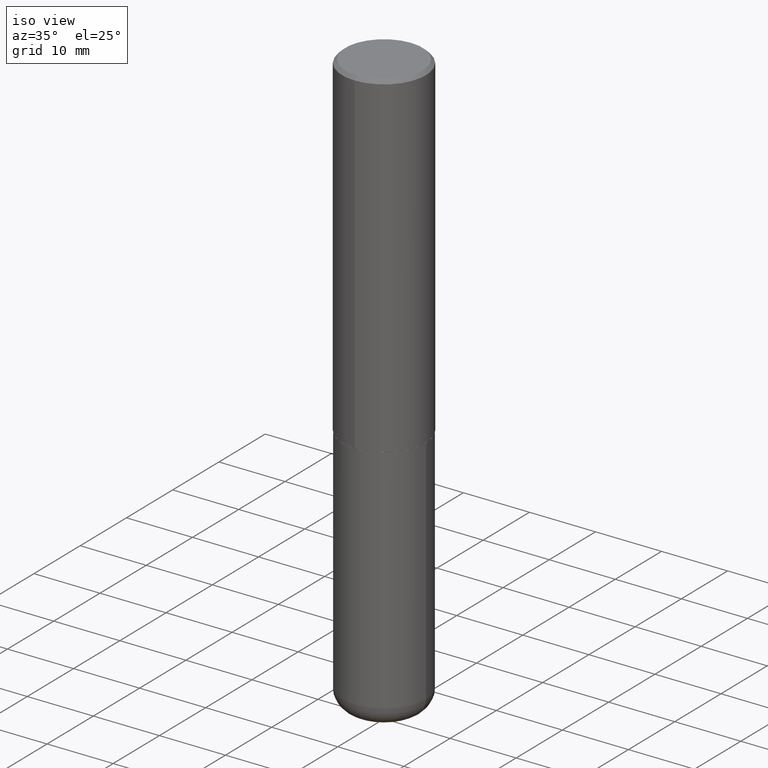
[diagram: clean part render]
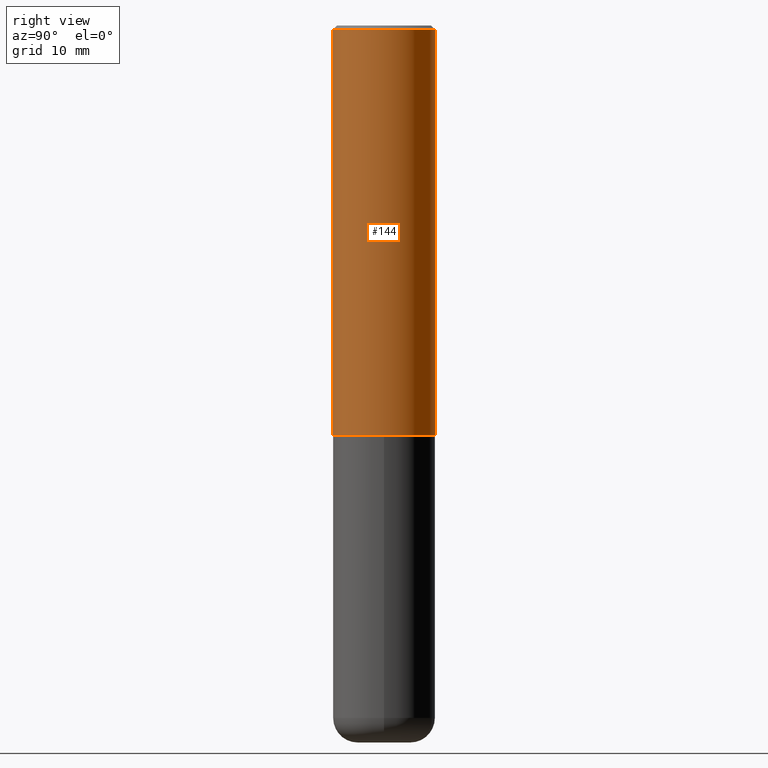
[diagram: tour spotlight — one face highlighted and labeled with its STEP entity id]
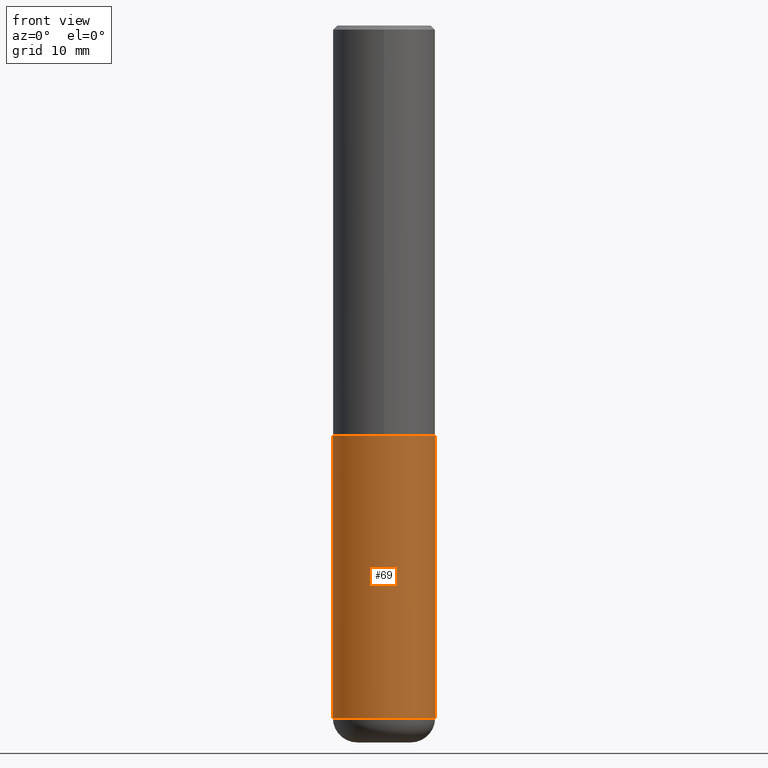
[diagram: tour spotlight — one face highlighted and labeled with its STEP entity id]
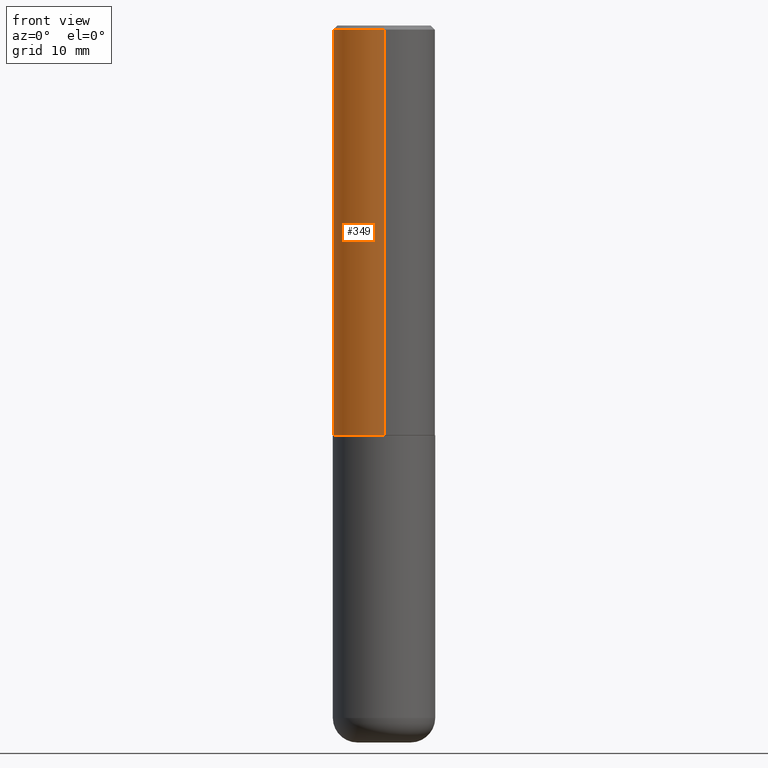
[diagram: tour spotlight — one face highlighted and labeled with its STEP entity id]
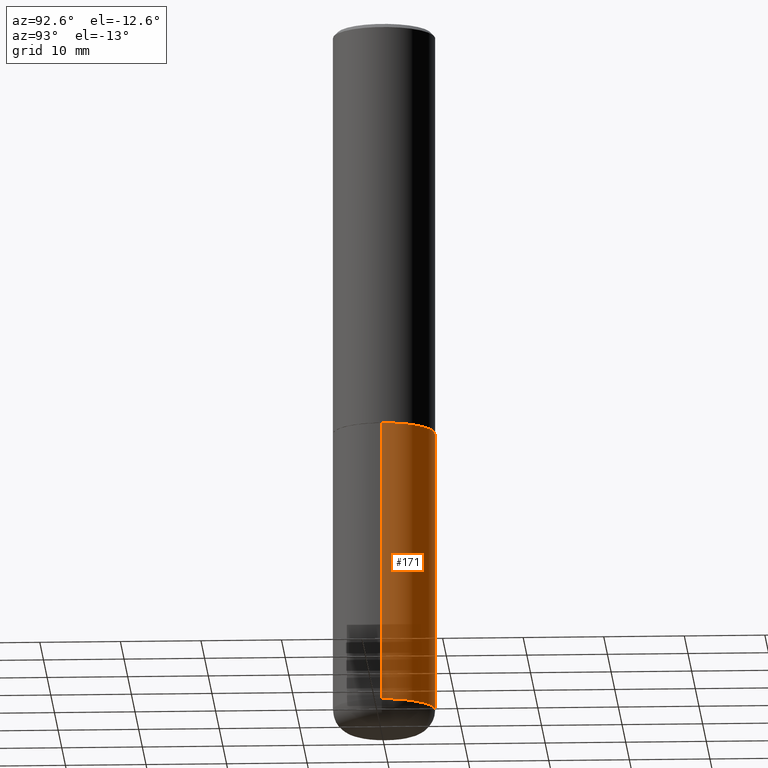
[diagram: tour spotlight — one face highlighted and labeled with its STEP entity id]
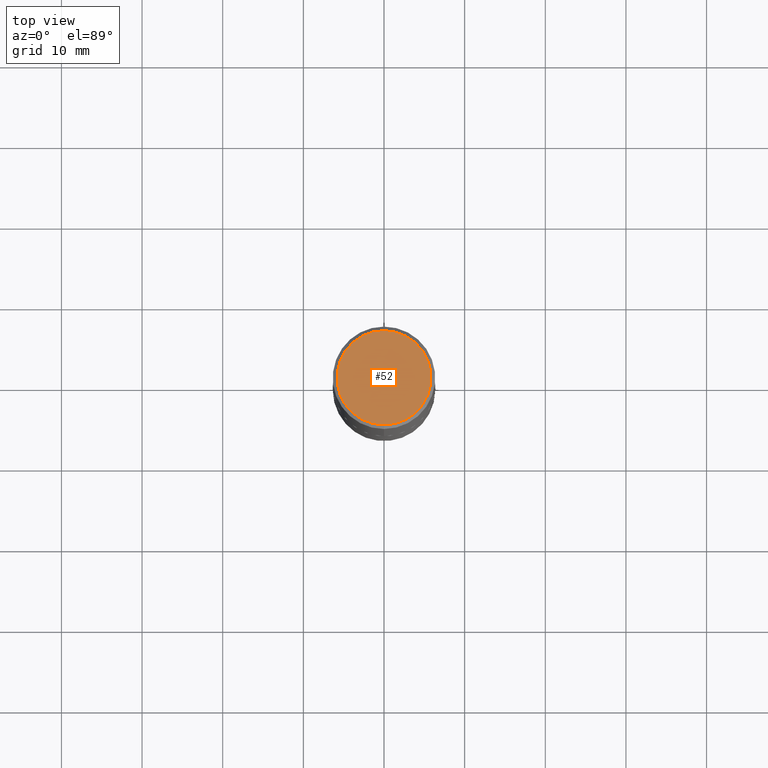
[diagram: tour spotlight — one face highlighted and labeled with its STEP entity id]
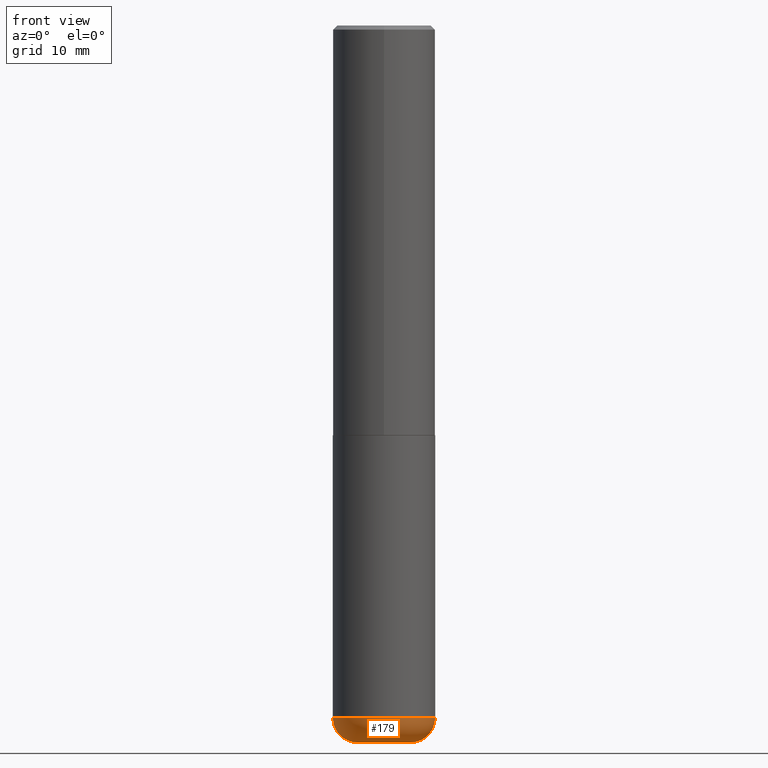
[diagram: tour spotlight — one face highlighted and labeled with its STEP entity id]
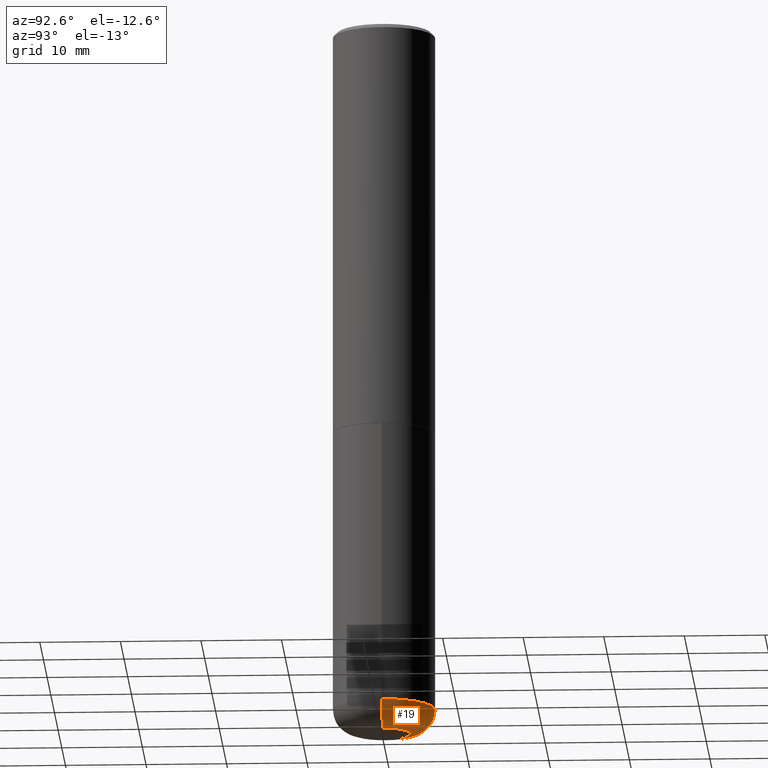
[diagram: tour spotlight — one face highlighted and labeled with its STEP entity id]
A machine part: a face-by-face anatomy tour. The part has 14 B-rep faces; the first image is the clean iso view, then the 7 largest visible faces are spotlighted one at a time (largest first), each with its STEP entity span.

Face 1 — right view, entity #144. In plain terms, the highlighted cylindrical surface (partial cylindrical patch) has radius 6.35 mm, axis along (-0, 0, 1).
Definition (entity closure, byte-faithful):
#10 = CARTESIAN_POINT ( 'NONE',  ( -1.715124499442882299E-15, -0.2500000000000000555, -0.01999999999999918510 ) ) ;
#14 = CARTESIAN_POINT ( 'NONE',  ( 1.776356839400251254E-15, 0.2500000000000001110, -8.727742518895823935E-16 ) ) ;
#28 = ORIENTED_EDGE ( 'NONE', *, *, #221, .T. ) ;
#41 = EDGE_CURVE ( 'NONE', #186, #153, #391, .T. ) ;
#43 = DIRECTION ( 'NONE',  ( -6.982962677686266711E-15, -1.000000000000000000, 3.491097007558327996E-15 ) ) ;
#67 = CARTESIAN_POINT ( 'NONE',  ( 1.776356839400276103E-15, 0.2499999999999933109, -1.999000000000000554 ) ) ;
#80 = CARTESIAN_POINT ( 'NONE',  ( 0.000000000000000000, 0.000000000000000000, 0.000000000000000000 ) ) ;
#90 = ORIENTED_EDGE ( 'NONE', *, *, #96, .F. ) ;
#96 = EDGE_CURVE ( 'NONE', #186, #159, #142, .T. ) ;
#97 = CARTESIAN_POINT ( 'NONE',  ( 4.891474366573836672E-31, -6.982194015116674235E-17, -0.02000000000000005593 ) ) ;
#121 = ORIENTED_EDGE ( 'NONE', *, *, #41, .T. ) ;
#141 = DIRECTION ( 'NONE',  ( -2.445737183286911680E-29, 3.491097007558327602E-15, 1.000000000000000000 ) ) ;
#142 = LINE ( 'NONE', #206, #404 ) ;
#144 = ADVANCED_FACE ( 'NONE', ( #295 ), #167, .T. ) ;
#148 = AXIS2_PLACEMENT_3D ( 'NONE', #80, #302, #43 ) ;
#153 = VERTEX_POINT ( 'NONE', #67 ) ;
#159 = VERTEX_POINT ( 'NONE', #10 ) ;
#167 = CYLINDRICAL_SURFACE ( 'NONE', #148, 0.2500000000000001110 ) ;
#181 = ORIENTED_EDGE ( 'NONE', *, *, #402, .F. ) ;
#186 = VERTEX_POINT ( 'NONE', #200 ) ;
#188 = DIRECTION ( 'NONE',  ( -2.445737183286911680E-29, 3.491097007558327602E-15, 1.000000000000000000 ) ) ;
#200 = CARTESIAN_POINT ( 'NONE',  ( -1.745740669421519543E-15, -0.2500000000000072164, -1.998999999999998778 ) ) ;
#206 = CARTESIAN_POINT ( 'NONE',  ( -1.745740669421567467E-15, -0.2500000000000001110, 8.727742518895823935E-16 ) ) ;
#221 = EDGE_CURVE ( 'NONE', #153, #379, #300, .T. ) ;
#223 = DIRECTION ( 'NONE',  ( -2.445737183286911680E-29, 3.491097007558327602E-15, 1.000000000000000000 ) ) ;
#226 = CARTESIAN_POINT ( 'NONE',  ( 4.889028629390535480E-29, -6.978702918109095527E-15, -1.998999999999999666 ) ) ;
#230 = CIRCLE ( 'NONE', #336, 0.2500000000000000000 ) ;
#259 = VECTOR ( 'NONE', #141, 39.37007874015748143 ) ;
#263 = DIRECTION ( 'NONE',  ( -2.445737183286911680E-29, 3.491097007558327602E-15, 1.000000000000000000 ) ) ;
#289 = EDGE_LOOP ( 'NONE', ( #121, #28, #181, #90 ) ) ;
#295 = FACE_OUTER_BOUND ( 'NONE', #289, .T. ) ;
#296 = AXIS2_PLACEMENT_3D ( 'NONE', #226, #188, #377 ) ;
#300 = LINE ( 'NONE', #14, #259 ) ;
#302 = DIRECTION ( 'NONE',  ( -2.445737183286911680E-29, 3.491097007558327602E-15, 1.000000000000000000 ) ) ;
#336 = AXIS2_PLACEMENT_3D ( 'NONE', #97, #223, #354 ) ;
#354 = DIRECTION ( 'NONE',  ( -6.982962677686265922E-15, -1.000000000000000000, 3.483106191921935554E-15 ) ) ;
#377 = DIRECTION ( 'NONE',  ( -6.982962677686265922E-15, -1.000000000000000000, 3.278217592397112312E-15 ) ) ;
#379 = VERTEX_POINT ( 'NONE', #382 ) ;
#382 = CARTESIAN_POINT ( 'NONE',  ( 1.745740669421566875E-15, 0.2499999999999999167, -0.02000000000000092676 ) ) ;
#391 = CIRCLE ( 'NONE', #296, 0.2500000000000002776 ) ;
#402 = EDGE_CURVE ( 'NONE', #159, #379, #230, .T. ) ;
#404 = VECTOR ( 'NONE', #263, 39.37007874015748143 ) ;

Face 2 — front view, entity #69. In plain terms, the highlighted cylindrical surface (partial cylindrical patch) has radius 6.35 mm, axis along (-0, 0, 1).
Definition (entity closure, byte-faithful):
#1 = ORIENTED_EDGE ( 'NONE', *, *, #376, .F. ) ;
#11 = AXIS2_PLACEMENT_3D ( 'NONE', #410, #119, #368 ) ;
#48 = CARTESIAN_POINT ( 'NONE',  ( 0.2500000000000000000, -8.728703347107857054E-15, -1.999999999999999778 ) ) ;
#56 = CIRCLE ( 'NONE', #164, 0.2500000000000000000 ) ;
#60 = LINE ( 'NONE', #95, #323 ) ;
#65 = ORIENTED_EDGE ( 'NONE', *, *, #270, .F. ) ;
#69 = ADVANCED_FACE ( 'NONE', ( #132 ), #345, .T. ) ;
#95 = CARTESIAN_POINT ( 'NONE',  ( -0.2500000000000000000, 1.776356839400250465E-15, -1.229733772563726445E-29 ) ) ;
#100 = DIRECTION ( 'NONE',  ( 1.000000000000000000, -6.982962677686266711E-15, 4.876176775795935793E-29 ) ) ;
#119 = DIRECTION ( 'NONE',  ( -2.445468806185136597E-29, 3.491481338843145583E-15, 1.000000000000000000 ) ) ;
#130 = VERTEX_POINT ( 'NONE', #48 ) ;
#132 = FACE_OUTER_BOUND ( 'NONE', #249, .T. ) ;
#136 = AXIS2_PLACEMENT_3D ( 'NONE', #253, #385, #100 ) ;
#146 = CARTESIAN_POINT ( 'NONE',  ( -0.2499999999999999722, -1.002485008588958224E-14, -3.379999999999999893 ) ) ;
#160 = DIRECTION ( 'NONE',  ( -2.445468806185136877E-29, 3.491481338843145188E-15, 1.000000000000000000 ) ) ;
#164 = AXIS2_PLACEMENT_3D ( 'NONE', #209, #180, #269 ) ;
#180 = DIRECTION ( 'NONE',  ( -2.445468806185136597E-29, 3.491481338843145583E-15, 1.000000000000000000 ) ) ;
#187 = CARTESIAN_POINT ( 'NONE',  ( 0.2500000000000000000, -1.745740669421566678E-15, 1.219044193948983948E-29 ) ) ;
#207 = VERTEX_POINT ( 'NONE', #367 ) ;
#209 = CARTESIAN_POINT ( 'NONE',  ( 8.265684564905761787E-29, -1.180120692528983271E-14, -3.379999999999999893 ) ) ;
#215 = ORIENTED_EDGE ( 'NONE', *, *, #290, .T. ) ;
#218 = ORIENTED_EDGE ( 'NONE', *, *, #370, .T. ) ;
#244 = VERTEX_POINT ( 'NONE', #146 ) ;
#249 = EDGE_LOOP ( 'NONE', ( #1, #215, #218, #65 ) ) ;
#253 = CARTESIAN_POINT ( 'NONE',  ( 0.000000000000000000, 0.000000000000000000, 0.000000000000000000 ) ) ;
#269 = DIRECTION ( 'NONE',  ( 1.000000000000000000, -6.982962677686270655E-15, 0.000000000000000000 ) ) ;
#270 = EDGE_CURVE ( 'NONE', #207, #130, #307, .T. ) ;
#290 = EDGE_CURVE ( 'NONE', #244, #418, #56, .T. ) ;
#307 = CIRCLE ( 'NONE', #11, 0.2500000000000000000 ) ;
#314 = DIRECTION ( 'NONE',  ( -2.445468806185136877E-29, 3.491481338843145188E-15, 1.000000000000000000 ) ) ;
#323 = VECTOR ( 'NONE', #314, 39.37007874015748143 ) ;
#345 = CYLINDRICAL_SURFACE ( 'NONE', #136, 0.2500000000000000000 ) ;
#351 = LINE ( 'NONE', #187, #406 ) ;
#367 = CARTESIAN_POINT ( 'NONE',  ( -0.2500000000000000000, -7.615727962087811078E-15, -1.999999999999999778 ) ) ;
#368 = DIRECTION ( 'NONE',  ( 1.000000000000000000, -6.982962677686266711E-15, 0.000000000000000000 ) ) ;
#370 = EDGE_CURVE ( 'NONE', #418, #130, #351, .T. ) ;
#376 = EDGE_CURVE ( 'NONE', #244, #207, #60, .T. ) ;
#385 = DIRECTION ( 'NONE',  ( -2.445468806185136597E-29, 3.491481338843145583E-15, 1.000000000000000000 ) ) ;
#386 = CARTESIAN_POINT ( 'NONE',  ( 0.2499999999999999722, -1.354694759471140096E-14, -3.379999999999999893 ) ) ;
#406 = VECTOR ( 'NONE', #160, 39.37007874015748143 ) ;
#410 = CARTESIAN_POINT ( 'NONE',  ( 4.890937612370272633E-29, -6.982962677686290376E-15, -1.999999999999999778 ) ) ;
#418 = VERTEX_POINT ( 'NONE', #386 ) ;

Face 3 — front view, entity #349. In plain terms, the highlighted cylindrical surface (partial cylindrical patch) has radius 6.35 mm, axis along (-0, 0, 1).
Definition (entity closure, byte-faithful):
#10 = CARTESIAN_POINT ( 'NONE',  ( -1.715124499442882299E-15, -0.2500000000000000555, -0.01999999999999918510 ) ) ;
#14 = CARTESIAN_POINT ( 'NONE',  ( 1.776356839400251254E-15, 0.2500000000000001110, -8.727742518895823935E-16 ) ) ;
#62 = CYLINDRICAL_SURFACE ( 'NONE', #298, 0.2500000000000001110 ) ;
#67 = CARTESIAN_POINT ( 'NONE',  ( 1.776356839400276103E-15, 0.2499999999999933109, -1.999000000000000554 ) ) ;
#84 = AXIS2_PLACEMENT_3D ( 'NONE', #359, #176, #236 ) ;
#96 = EDGE_CURVE ( 'NONE', #186, #159, #142, .T. ) ;
#114 = DIRECTION ( 'NONE',  ( -2.445737183286911680E-29, 3.491097007558327602E-15, 1.000000000000000000 ) ) ;
#122 = EDGE_CURVE ( 'NONE', #153, #186, #272, .T. ) ;
#127 = DIRECTION ( 'NONE',  ( -6.982962677686266711E-15, -1.000000000000000000, 3.491097007558327996E-15 ) ) ;
#128 = EDGE_CURVE ( 'NONE', #379, #159, #178, .T. ) ;
#141 = DIRECTION ( 'NONE',  ( -2.445737183286911680E-29, 3.491097007558327602E-15, 1.000000000000000000 ) ) ;
#142 = LINE ( 'NONE', #206, #404 ) ;
#147 = ORIENTED_EDGE ( 'NONE', *, *, #122, .T. ) ;
#153 = VERTEX_POINT ( 'NONE', #67 ) ;
#159 = VERTEX_POINT ( 'NONE', #10 ) ;
#170 = DIRECTION ( 'NONE',  ( -6.982962677686265922E-15, -1.000000000000000000, 3.278217592397112312E-15 ) ) ;
#176 = DIRECTION ( 'NONE',  ( -2.445737183286911680E-29, 3.491097007558327602E-15, 1.000000000000000000 ) ) ;
#178 = CIRCLE ( 'NONE', #84, 0.2500000000000000000 ) ;
#186 = VERTEX_POINT ( 'NONE', #200 ) ;
#200 = CARTESIAN_POINT ( 'NONE',  ( -1.745740669421519543E-15, -0.2500000000000072164, -1.998999999999998778 ) ) ;
#206 = CARTESIAN_POINT ( 'NONE',  ( -1.745740669421567467E-15, -0.2500000000000001110, 8.727742518895823935E-16 ) ) ;
#221 = EDGE_CURVE ( 'NONE', #153, #379, #300, .T. ) ;
#224 = FACE_OUTER_BOUND ( 'NONE', #311, .T. ) ;
#236 = DIRECTION ( 'NONE',  ( -6.982962677686265922E-15, -1.000000000000000000, 3.483106191921935554E-15 ) ) ;
#238 = AXIS2_PLACEMENT_3D ( 'NONE', #334, #114, #170 ) ;
#248 = CARTESIAN_POINT ( 'NONE',  ( 0.000000000000000000, 0.000000000000000000, 0.000000000000000000 ) ) ;
#259 = VECTOR ( 'NONE', #141, 39.37007874015748143 ) ;
#263 = DIRECTION ( 'NONE',  ( -2.445737183286911680E-29, 3.491097007558327602E-15, 1.000000000000000000 ) ) ;
#272 = CIRCLE ( 'NONE', #238, 0.2500000000000002776 ) ;
#298 = AXIS2_PLACEMENT_3D ( 'NONE', #248, #348, #127 ) ;
#300 = LINE ( 'NONE', #14, #259 ) ;
#311 = EDGE_LOOP ( 'NONE', ( #411, #147, #322, #313 ) ) ;
#313 = ORIENTED_EDGE ( 'NONE', *, *, #128, .F. ) ;
#322 = ORIENTED_EDGE ( 'NONE', *, *, #96, .T. ) ;
#334 = CARTESIAN_POINT ( 'NONE',  ( 4.889028629390535480E-29, -6.978702918109095527E-15, -1.998999999999999666 ) ) ;
#348 = DIRECTION ( 'NONE',  ( -2.445737183286911680E-29, 3.491097007558327602E-15, 1.000000000000000000 ) ) ;
#349 = ADVANCED_FACE ( 'NONE', ( #224 ), #62, .T. ) ;
#359 = CARTESIAN_POINT ( 'NONE',  ( 4.891474366573836672E-31, -6.982194015116674235E-17, -0.02000000000000005593 ) ) ;
#379 = VERTEX_POINT ( 'NONE', #382 ) ;
#382 = CARTESIAN_POINT ( 'NONE',  ( 1.745740669421566875E-15, 0.2499999999999999167, -0.02000000000000092676 ) ) ;
#404 = VECTOR ( 'NONE', #263, 39.37007874015748143 ) ;
#411 = ORIENTED_EDGE ( 'NONE', *, *, #221, .F. ) ;

Face 4 — auxiliary view, entity #171. In plain terms, the highlighted cylindrical surface (partial cylindrical patch) has radius 6.35 mm, axis along (-0, 0, 1).
Definition (entity closure, byte-faithful):
#3 = AXIS2_PLACEMENT_3D ( 'NONE', #116, #237, #155 ) ;
#4 = ORIENTED_EDGE ( 'NONE', *, *, #376, .T. ) ;
#8 = CYLINDRICAL_SURFACE ( 'NONE', #91, 0.2500000000000000000 ) ;
#45 = CIRCLE ( 'NONE', #405, 0.2500000000000000000 ) ;
#48 = CARTESIAN_POINT ( 'NONE',  ( 0.2500000000000000000, -8.728703347107857054E-15, -1.999999999999999778 ) ) ;
#54 = DIRECTION ( 'NONE',  ( -2.445468806185136597E-29, 3.491481338843145583E-15, 1.000000000000000000 ) ) ;
#59 = EDGE_LOOP ( 'NONE', ( #61, #4, #151, #123 ) ) ;
#60 = LINE ( 'NONE', #95, #323 ) ;
#61 = ORIENTED_EDGE ( 'NONE', *, *, #294, .T. ) ;
#91 = AXIS2_PLACEMENT_3D ( 'NONE', #361, #401, #197 ) ;
#95 = CARTESIAN_POINT ( 'NONE',  ( -0.2500000000000000000, 1.776356839400250465E-15, -1.229733772563726445E-29 ) ) ;
#111 = FACE_OUTER_BOUND ( 'NONE', #59, .T. ) ;
#116 = CARTESIAN_POINT ( 'NONE',  ( 8.265684564905761787E-29, -1.180120692528983271E-14, -3.379999999999999893 ) ) ;
#123 = ORIENTED_EDGE ( 'NONE', *, *, #370, .F. ) ;
#130 = VERTEX_POINT ( 'NONE', #48 ) ;
#145 = DIRECTION ( 'NONE',  ( 1.000000000000000000, -6.982962677686266711E-15, 0.000000000000000000 ) ) ;
#146 = CARTESIAN_POINT ( 'NONE',  ( -0.2499999999999999722, -1.002485008588958224E-14, -3.379999999999999893 ) ) ;
#151 = ORIENTED_EDGE ( 'NONE', *, *, #232, .F. ) ;
#155 = DIRECTION ( 'NONE',  ( 1.000000000000000000, -6.982962677686270655E-15, 0.000000000000000000 ) ) ;
#160 = DIRECTION ( 'NONE',  ( -2.445468806185136877E-29, 3.491481338843145188E-15, 1.000000000000000000 ) ) ;
#171 = ADVANCED_FACE ( 'NONE', ( #111 ), #8, .T. ) ;
#185 = CIRCLE ( 'NONE', #3, 0.2500000000000000000 ) ;
#187 = CARTESIAN_POINT ( 'NONE',  ( 0.2500000000000000000, -1.745740669421566678E-15, 1.219044193948983948E-29 ) ) ;
#197 = DIRECTION ( 'NONE',  ( 1.000000000000000000, -6.982962677686266711E-15, 4.876176775795935793E-29 ) ) ;
#207 = VERTEX_POINT ( 'NONE', #367 ) ;
#232 = EDGE_CURVE ( 'NONE', #130, #207, #45, .T. ) ;
#237 = DIRECTION ( 'NONE',  ( -2.445468806185136597E-29, 3.491481338843145583E-15, 1.000000000000000000 ) ) ;
#244 = VERTEX_POINT ( 'NONE', #146 ) ;
#294 = EDGE_CURVE ( 'NONE', #418, #244, #185, .T. ) ;
#314 = DIRECTION ( 'NONE',  ( -2.445468806185136877E-29, 3.491481338843145188E-15, 1.000000000000000000 ) ) ;
#323 = VECTOR ( 'NONE', #314, 39.37007874015748143 ) ;
#340 = CARTESIAN_POINT ( 'NONE',  ( 4.890937612370272633E-29, -6.982962677686290376E-15, -1.999999999999999778 ) ) ;
#351 = LINE ( 'NONE', #187, #406 ) ;
#361 = CARTESIAN_POINT ( 'NONE',  ( 0.000000000000000000, 0.000000000000000000, 0.000000000000000000 ) ) ;
#367 = CARTESIAN_POINT ( 'NONE',  ( -0.2500000000000000000, -7.615727962087811078E-15, -1.999999999999999778 ) ) ;
#370 = EDGE_CURVE ( 'NONE', #418, #130, #351, .T. ) ;
#376 = EDGE_CURVE ( 'NONE', #244, #207, #60, .T. ) ;
#386 = CARTESIAN_POINT ( 'NONE',  ( 0.2499999999999999722, -1.354694759471140096E-14, -3.379999999999999893 ) ) ;
#401 = DIRECTION ( 'NONE',  ( -2.445468806185136597E-29, 3.491481338843145583E-15, 1.000000000000000000 ) ) ;
#405 = AXIS2_PLACEMENT_3D ( 'NONE', #340, #54, #145 ) ;
#406 = VECTOR ( 'NONE', #160, 39.37007874015748143 ) ;
#418 = VERTEX_POINT ( 'NONE', #386 ) ;

Face 5 — top view, entity #52. In plain terms, the highlighted planar face has unit normal (0, -0, -1).
Definition (entity closure, byte-faithful):
#24 = DIRECTION ( 'NONE',  ( 6.982962677686265922E-15, 1.000000000000000000, -3.491097007558327602E-15 ) ) ;
#29 = FACE_OUTER_BOUND ( 'NONE', #73, .T. ) ;
#38 = CIRCLE ( 'NONE', #332, 0.2299999999999999822 ) ;
#52 = ADVANCED_FACE ( 'NONE', ( #29 ), #89, .F. ) ;
#55 = ORIENTED_EDGE ( 'NONE', *, *, #211, .T. ) ;
#68 = CIRCLE ( 'NONE', #415, 0.2299999999999999822 ) ;
#73 = EDGE_LOOP ( 'NONE', ( #214, #55 ) ) ;
#89 = PLANE ( 'NONE',  #344 ) ;
#156 = VERTEX_POINT ( 'NONE', #292 ) ;
#183 = CARTESIAN_POINT ( 'NONE',  ( 1.606081415867841067E-15, 0.2299999999999999822, -8.158020473064706174E-16 ) ) ;
#202 = DIRECTION ( 'NONE',  ( -2.445737183286911680E-29, 3.491097007558327602E-15, 1.000000000000000000 ) ) ;
#211 = EDGE_CURVE ( 'NONE', #156, #388, #68, .T. ) ;
#214 = ORIENTED_EDGE ( 'NONE', *, *, #381, .T. ) ;
#219 = CARTESIAN_POINT ( 'NONE',  ( 6.285415214839433991E-46, -8.971934677910720830E-32, -2.569947113611056727E-17 ) ) ;
#250 = DIRECTION ( 'NONE',  ( -6.982962677686265922E-15, -1.000000000000000000, 3.491097007558327207E-15 ) ) ;
#282 = DIRECTION ( 'NONE',  ( -2.445737183286911680E-29, 3.491097007558327602E-15, 1.000000000000000000 ) ) ;
#292 = CARTESIAN_POINT ( 'NONE',  ( -1.646519519465166968E-15, -0.2299999999999999822, 7.772528406023046093E-16 ) ) ;
#308 = DIRECTION ( 'NONE',  ( 2.445737183286911400E-29, -3.491097007558327602E-15, -1.000000000000000000 ) ) ;
#327 = CARTESIAN_POINT ( 'NONE',  ( 6.285415214839433991E-46, -8.971934677910720830E-32, -2.569947113611056727E-17 ) ) ;
#328 = DIRECTION ( 'NONE',  ( -6.982962677686265922E-15, -1.000000000000000000, 3.491097007558327207E-15 ) ) ;
#332 = AXIS2_PLACEMENT_3D ( 'NONE', #219, #282, #250 ) ;
#344 = AXIS2_PLACEMENT_3D ( 'NONE', #183, #308, #24 ) ;
#381 = EDGE_CURVE ( 'NONE', #388, #156, #38, .T. ) ;
#383 = CARTESIAN_POINT ( 'NONE',  ( 1.675911042644703774E-15, 0.2299999999999999822, -8.286517828745257562E-16 ) ) ;
#388 = VERTEX_POINT ( 'NONE', #383 ) ;
#415 = AXIS2_PLACEMENT_3D ( 'NONE', #327, #202, #328 ) ;

Face 6 — front view, entity #179. In plain terms, the highlighted toroidal blend (fillet) surface has major radius 3.302 mm and minor (blend) radius 3.048 mm.
Definition (entity closure, byte-faithful):
#13 = DIRECTION ( 'NONE',  ( 1.000000000000000000, -6.982962677686265133E-15, 4.883557194083112340E-29 ) ) ;
#15 = DIRECTION ( 'NONE',  ( 7.105427357601001859E-15, 1.000000000000000000, -3.491481338843145583E-15 ) ) ;
#25 = ORIENTED_EDGE ( 'NONE', *, *, #161, .F. ) ;
#35 = CARTESIAN_POINT ( 'NONE',  ( 0.1300000000000000044, -1.270899207338904770E-14, -3.379999999999999893 ) ) ;
#56 = CIRCLE ( 'NONE', #164, 0.2500000000000000000 ) ;
#77 = DIRECTION ( 'NONE',  ( -2.445468806185136597E-29, 3.491481338843145583E-15, 1.000000000000000000 ) ) ;
#88 = CARTESIAN_POINT ( 'NONE',  ( -0.1300000000000000044, -1.066066460767623105E-14, -3.500000000000000000 ) ) ;
#98 = AXIS2_PLACEMENT_3D ( 'NONE', #35, #279, #414 ) ;
#104 = CARTESIAN_POINT ( 'NONE',  ( 8.559140821647976968E-29, -1.222018468595100934E-14, -3.500000000000000000 ) ) ;
#118 = ORIENTED_EDGE ( 'NONE', *, *, #301, .T. ) ;
#146 = CARTESIAN_POINT ( 'NONE',  ( -0.2499999999999999722, -1.002485008588958224E-14, -3.379999999999999893 ) ) ;
#161 = EDGE_CURVE ( 'NONE', #278, #244, #384, .T. ) ;
#162 = CARTESIAN_POINT ( 'NONE',  ( 0.1300000000000000044, -1.312796983405022433E-14, -3.500000000000000000 ) ) ;
#164 = AXIS2_PLACEMENT_3D ( 'NONE', #209, #180, #269 ) ;
#172 = CARTESIAN_POINT ( 'NONE',  ( -0.1300000000000000044, -1.087750136880170322E-14, -3.379999999999999893 ) ) ;
#179 = ADVANCED_FACE ( 'NONE', ( #325 ), #265, .T. ) ;
#180 = DIRECTION ( 'NONE',  ( -2.445468806185136597E-29, 3.491481338843145583E-15, 1.000000000000000000 ) ) ;
#192 = EDGE_CURVE ( 'NONE', #278, #305, #303, .T. ) ;
#209 = CARTESIAN_POINT ( 'NONE',  ( 8.265684564905761787E-29, -1.180120692528983271E-14, -3.379999999999999893 ) ) ;
#229 = DIRECTION ( 'NONE',  ( 1.000000000000000000, -6.982962677686273810E-15, 0.000000000000000000 ) ) ;
#234 = CARTESIAN_POINT ( 'NONE',  ( 8.265684564905761787E-29, -1.180120692528983271E-14, -3.379999999999999893 ) ) ;
#241 = ORIENTED_EDGE ( 'NONE', *, *, #192, .T. ) ;
#244 = VERTEX_POINT ( 'NONE', #146 ) ;
#246 = AXIS2_PLACEMENT_3D ( 'NONE', #104, #364, #229 ) ;
#251 = AXIS2_PLACEMENT_3D ( 'NONE', #172, #15, #297 ) ;
#265 = TOROIDAL_SURFACE ( 'NONE', #280, 0.1300000000000000044, 0.1199999999999999123 ) ;
#269 = DIRECTION ( 'NONE',  ( 1.000000000000000000, -6.982962677686270655E-15, 0.000000000000000000 ) ) ;
#276 = EDGE_LOOP ( 'NONE', ( #25, #241, #118, #319 ) ) ;
#278 = VERTEX_POINT ( 'NONE', #88 ) ;
#279 = DIRECTION ( 'NONE',  ( -6.982962677686266711E-15, -1.000000000000000000, 3.491481338843145583E-15 ) ) ;
#280 = AXIS2_PLACEMENT_3D ( 'NONE', #234, #77, #13 ) ;
#290 = EDGE_CURVE ( 'NONE', #244, #418, #56, .T. ) ;
#297 = DIRECTION ( 'NONE',  ( -1.000000000000000000, 7.105427357600995548E-15, 0.000000000000000000 ) ) ;
#301 = EDGE_CURVE ( 'NONE', #305, #418, #400, .T. ) ;
#303 = CIRCLE ( 'NONE', #246, 0.1300000000000000044 ) ;
#305 = VERTEX_POINT ( 'NONE', #162 ) ;
#319 = ORIENTED_EDGE ( 'NONE', *, *, #290, .F. ) ;
#325 = FACE_OUTER_BOUND ( 'NONE', #276, .T. ) ;
#364 = DIRECTION ( 'NONE',  ( -2.445468806185136597E-29, 3.491481338843145583E-15, 1.000000000000000000 ) ) ;
#384 = CIRCLE ( 'NONE', #251, 0.1199999999999999262 ) ;
#386 = CARTESIAN_POINT ( 'NONE',  ( 0.2499999999999999722, -1.354694759471140096E-14, -3.379999999999999893 ) ) ;
#400 = CIRCLE ( 'NONE', #98, 0.1199999999999999262 ) ;
#414 = DIRECTION ( 'NONE',  ( 1.000000000000000000, -6.982962677686272233E-15, 0.000000000000000000 ) ) ;
#418 = VERTEX_POINT ( 'NONE', #386 ) ;

Face 7 — auxiliary view, entity #19. In plain terms, the highlighted toroidal blend (fillet) surface has major radius 3.302 mm and minor (blend) radius 3.048 mm.
Definition (entity closure, byte-faithful):
#3 = AXIS2_PLACEMENT_3D ( 'NONE', #116, #237, #155 ) ;
#15 = DIRECTION ( 'NONE',  ( 7.105427357601001859E-15, 1.000000000000000000, -3.491481338843145583E-15 ) ) ;
#19 = ADVANCED_FACE ( 'NONE', ( #57 ), #330, .T. ) ;
#35 = CARTESIAN_POINT ( 'NONE',  ( 0.1300000000000000044, -1.270899207338904770E-14, -3.379999999999999893 ) ) ;
#57 = FACE_OUTER_BOUND ( 'NONE', #191, .T. ) ;
#58 = DIRECTION ( 'NONE',  ( -2.445468806185136597E-29, 3.491481338843145583E-15, 1.000000000000000000 ) ) ;
#88 = CARTESIAN_POINT ( 'NONE',  ( -0.1300000000000000044, -1.066066460767623105E-14, -3.500000000000000000 ) ) ;
#98 = AXIS2_PLACEMENT_3D ( 'NONE', #35, #279, #414 ) ;
#116 = CARTESIAN_POINT ( 'NONE',  ( 8.265684564905761787E-29, -1.180120692528983271E-14, -3.379999999999999893 ) ) ;
#117 = CARTESIAN_POINT ( 'NONE',  ( 8.265684564905761787E-29, -1.180120692528983271E-14, -3.379999999999999893 ) ) ;
#126 = AXIS2_PLACEMENT_3D ( 'NONE', #117, #58, #341 ) ;
#146 = CARTESIAN_POINT ( 'NONE',  ( -0.2499999999999999722, -1.002485008588958224E-14, -3.379999999999999893 ) ) ;
#155 = DIRECTION ( 'NONE',  ( 1.000000000000000000, -6.982962677686270655E-15, 0.000000000000000000 ) ) ;
#161 = EDGE_CURVE ( 'NONE', #278, #244, #384, .T. ) ;
#162 = CARTESIAN_POINT ( 'NONE',  ( 0.1300000000000000044, -1.312796983405022433E-14, -3.500000000000000000 ) ) ;
#172 = CARTESIAN_POINT ( 'NONE',  ( -0.1300000000000000044, -1.087750136880170322E-14, -3.379999999999999893 ) ) ;
#182 = CARTESIAN_POINT ( 'NONE',  ( 8.559140821647976968E-29, -1.222018468595100934E-14, -3.500000000000000000 ) ) ;
#185 = CIRCLE ( 'NONE', #3, 0.2500000000000000000 ) ;
#191 = EDGE_LOOP ( 'NONE', ( #245, #350, #195, #412 ) ) ;
#193 = CIRCLE ( 'NONE', #366, 0.1300000000000000044 ) ;
#195 = ORIENTED_EDGE ( 'NONE', *, *, #294, .F. ) ;
#237 = DIRECTION ( 'NONE',  ( -2.445468806185136597E-29, 3.491481338843145583E-15, 1.000000000000000000 ) ) ;
#239 = EDGE_CURVE ( 'NONE', #305, #278, #193, .T. ) ;
#244 = VERTEX_POINT ( 'NONE', #146 ) ;
#245 = ORIENTED_EDGE ( 'NONE', *, *, #239, .T. ) ;
#251 = AXIS2_PLACEMENT_3D ( 'NONE', #172, #15, #297 ) ;
#267 = DIRECTION ( 'NONE',  ( -2.445468806185136597E-29, 3.491481338843145583E-15, 1.000000000000000000 ) ) ;
#278 = VERTEX_POINT ( 'NONE', #88 ) ;
#279 = DIRECTION ( 'NONE',  ( -6.982962677686266711E-15, -1.000000000000000000, 3.491481338843145583E-15 ) ) ;
#294 = EDGE_CURVE ( 'NONE', #418, #244, #185, .T. ) ;
#297 = DIRECTION ( 'NONE',  ( -1.000000000000000000, 7.105427357600995548E-15, 0.000000000000000000 ) ) ;
#301 = EDGE_CURVE ( 'NONE', #305, #418, #400, .T. ) ;
#305 = VERTEX_POINT ( 'NONE', #162 ) ;
#306 = DIRECTION ( 'NONE',  ( 1.000000000000000000, -6.982962677686273810E-15, 0.000000000000000000 ) ) ;
#330 = TOROIDAL_SURFACE ( 'NONE', #126, 0.1300000000000000044, 0.1199999999999999123 ) ;
#341 = DIRECTION ( 'NONE',  ( 1.000000000000000000, -6.982962677686265133E-15, 4.883557194083112340E-29 ) ) ;
#350 = ORIENTED_EDGE ( 'NONE', *, *, #161, .T. ) ;
#366 = AXIS2_PLACEMENT_3D ( 'NONE', #182, #267, #306 ) ;
#384 = CIRCLE ( 'NONE', #251, 0.1199999999999999262 ) ;
#386 = CARTESIAN_POINT ( 'NONE',  ( 0.2499999999999999722, -1.354694759471140096E-14, -3.379999999999999893 ) ) ;
#400 = CIRCLE ( 'NONE', #98, 0.1199999999999999262 ) ;
#412 = ORIENTED_EDGE ( 'NONE', *, *, #301, .F. ) ;
#414 = DIRECTION ( 'NONE',  ( 1.000000000000000000, -6.982962677686272233E-15, 0.000000000000000000 ) ) ;
#418 = VERTEX_POINT ( 'NONE', #386 ) ;